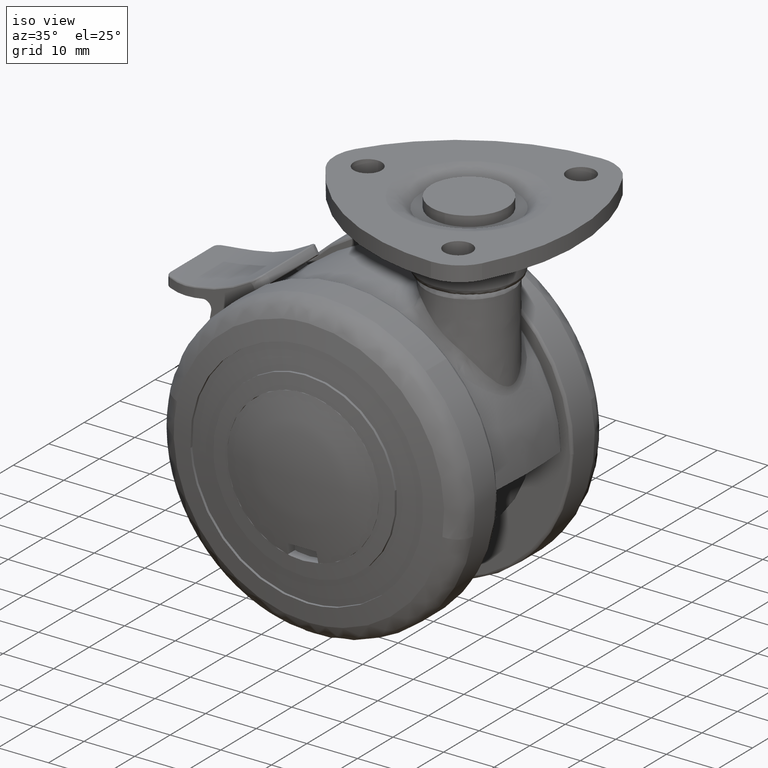
[diagram: clean part render]
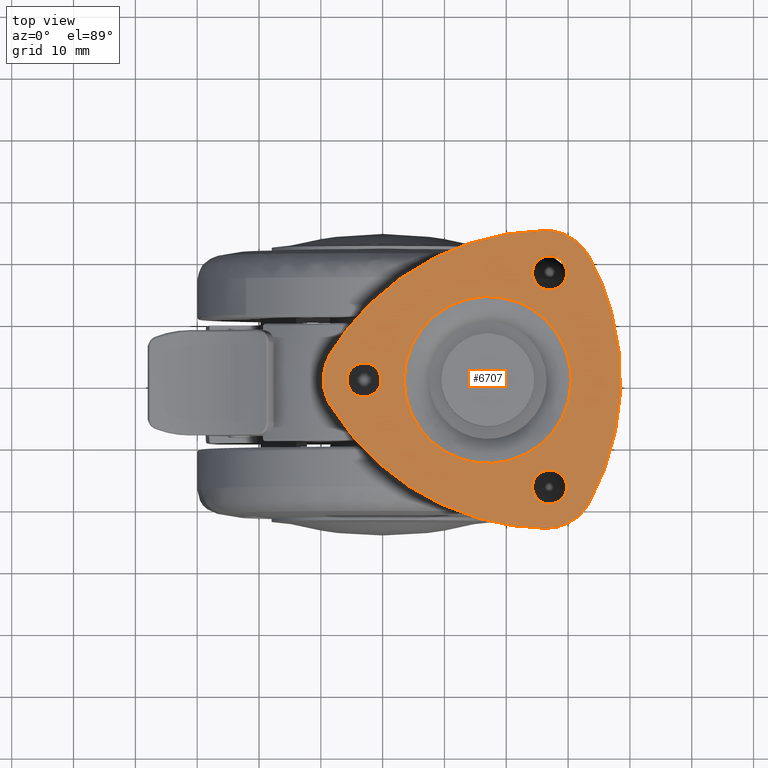
[diagram: tour spotlight — one face highlighted and labeled with its STEP entity id]
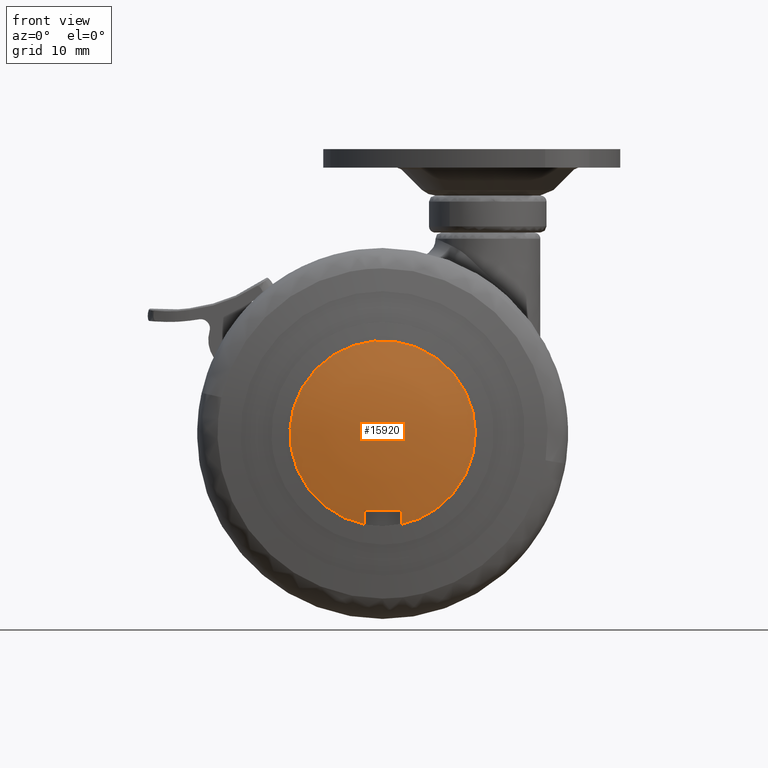
[diagram: tour spotlight — one face highlighted and labeled with its STEP entity id]
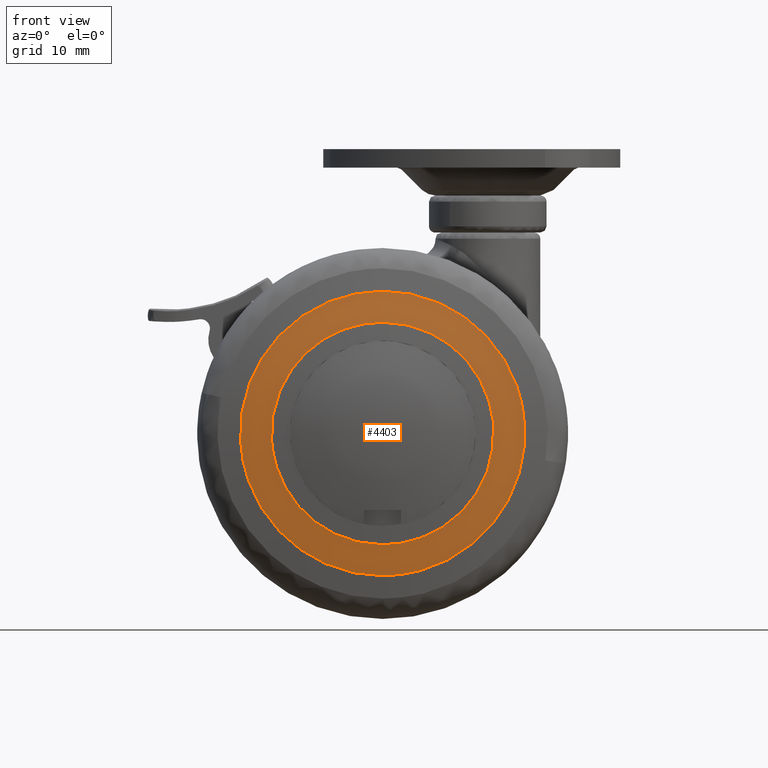
[diagram: tour spotlight — one face highlighted and labeled with its STEP entity id]
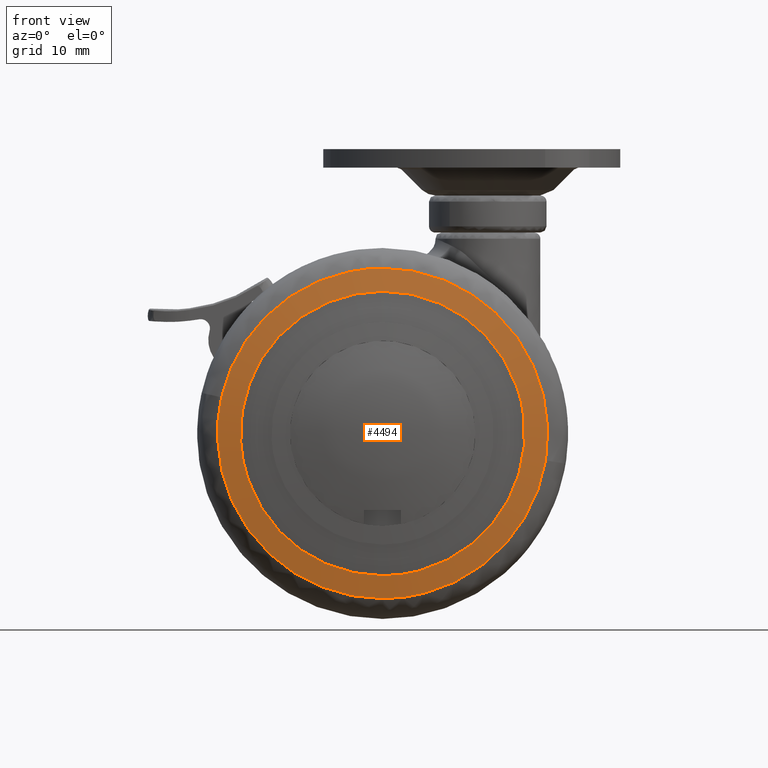
[diagram: tour spotlight — one face highlighted and labeled with its STEP entity id]
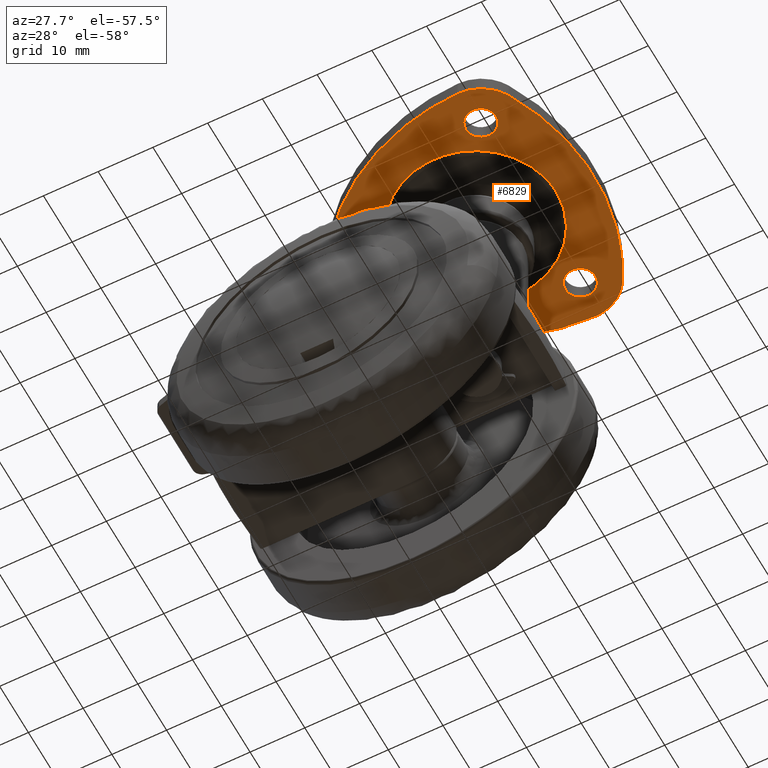
[diagram: tour spotlight — one face highlighted and labeled with its STEP entity id]
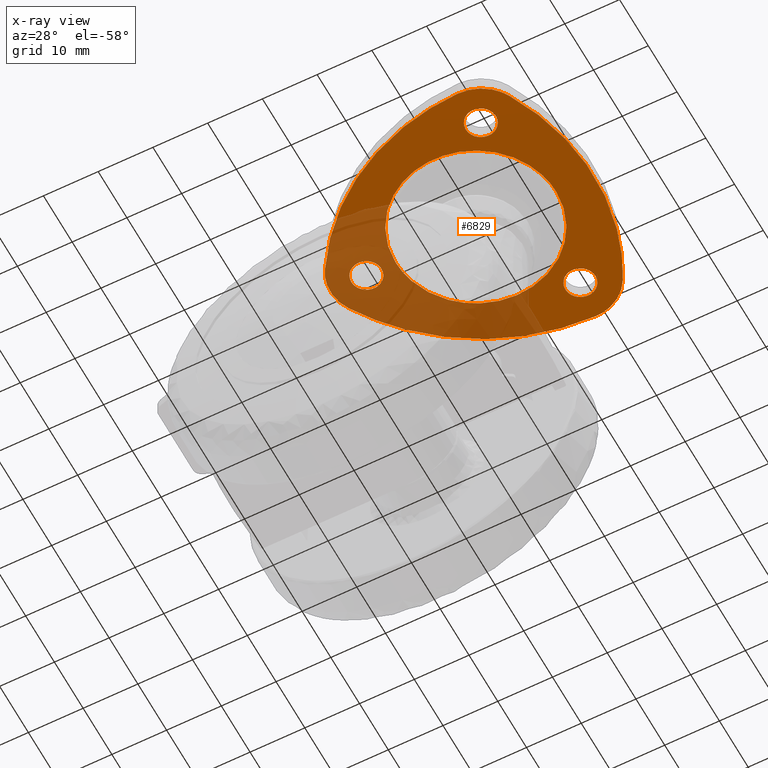
[diagram: x-ray of the same camera — body ghosted, this tour face saturated]
A machine part: a face-by-face anatomy tour. The part has 231 B-rep faces; the first image is the clean iso view, then the 5 largest visible faces are spotlighted one at a time (largest first), each with its STEP entity span.

Face 1 — top view, entity #6707. In plain terms, the highlighted face is a freeform B-spline surface patch.
Definition (entity closure, byte-faithful):
#5035=CARTESIAN_POINT('',(26.675405854604701,14.589731802510521,46.0));
#5036=VERTEX_POINT('',#5035);
#5037=CARTESIAN_POINT('',(29.750000000000000,17.320508000000000,46.0));
#5038=VERTEX_POINT('',#5037);
#5039=CARTESIAN_POINT('',(26.675405854604701,14.589731802510522,46.0));
#5040=CARTESIAN_POINT('',(26.837133670867097,14.570507999999998,46.000000000000007));
#5041=CARTESIAN_POINT('',(27.0,14.570508000000000,46.0));
#5042=CARTESIAN_POINT('',(29.750000000000004,14.570507999999998,46.000000000000007));
#5043=CARTESIAN_POINT('',(29.750000000000000,17.320508000000000,46.0));
#5051=(BOUNDED_CURVE()B_SPLINE_CURVE(2,(#5039,#5040,#5041,#5042,#5043),.UNSPECIFIED.,.F.,.U.)B_SPLINE_CURVE_WITH_KNOTS((3,2,3),(0.229562473504602,0.250000000000000,0.500000000000000),.UNSPECIFIED.)CURVE()GEOMETRIC_REPRESENTATION_ITEM()RATIONAL_B_SPLINE_CURVE((0.956026754166243,0.976055948320711,1.0,0.707106781186548,1.0))REPRESENTATION_ITEM(''));
#5052=EDGE_CURVE('',#5036,#5038,#5051,.T.);
#5054=CARTESIAN_POINT('',(27.167879704802289,20.065378926783470,45.999999999999893));
#5055=VERTEX_POINT('',#5054);
#5056=CARTESIAN_POINT('',(29.750000000000000,17.320508000000000,46.0));
#5057=CARTESIAN_POINT('',(29.750000000000004,19.907453252142517,46.0));
#5058=CARTESIAN_POINT('',(27.167879704802285,20.065378926783474,45.999999999999886));
#5066=(BOUNDED_CURVE()B_SPLINE_CURVE(2,(#5056,#5057,#5058),.UNSPECIFIED.,.F.,.U.)B_SPLINE_CURVE_WITH_KNOTS((3,3),(0.500000000000000,0.739333199790638),.UNSPECIFIED.)CURVE()GEOMETRIC_REPRESENTATION_ITEM()RATIONAL_B_SPLINE_CURVE((1.0,0.719603714977587,0.976072550785749))REPRESENTATION_ITEM(''));
#5067=EDGE_CURVE('',#5038,#5055,#5066,.T.);
#5134=CARTESIAN_POINT('',(24.250000000000000,17.320508000000000,46.0));
#5135=VERTEX_POINT('',#5134);
#5136=CARTESIAN_POINT('',(24.250000000000000,17.320508000000000,46.0));
#5137=CARTESIAN_POINT('',(24.250000000000004,14.878028053794450,45.999999999999993));
#5138=CARTESIAN_POINT('',(26.675405854604701,14.589731802510522,46.0));
#5146=(BOUNDED_CURVE()B_SPLINE_CURVE(2,(#5136,#5137,#5138),.UNSPECIFIED.,.F.,.U.)B_SPLINE_CURVE_WITH_KNOTS((3,3),(0.0,0.229562473504602),.UNSPECIFIED.)CURVE()GEOMETRIC_REPRESENTATION_ITEM()RATIONAL_B_SPLINE_CURVE((1.0,0.731050832865837,0.956026754166243))REPRESENTATION_ITEM(''));
#5147=EDGE_CURVE('',#5135,#5036,#5146,.T.);
#5181=CARTESIAN_POINT('',(27.167879704802285,20.065378926783474,45.999999999999886));
#5182=CARTESIAN_POINT('',(27.084018204314173,20.070507999999993,46.000000000000007));
#5183=CARTESIAN_POINT('',(27.0,20.070508000000000,46.0));
#5184=CARTESIAN_POINT('',(24.250000000000004,20.070507999999997,46.000000000000007));
#5185=CARTESIAN_POINT('',(24.250000000000000,17.320508000000000,46.0));
#5193=(BOUNDED_CURVE()B_SPLINE_CURVE(2,(#5181,#5182,#5183,#5184,#5185),.UNSPECIFIED.,.F.,.U.)B_SPLINE_CURVE_WITH_KNOTS((3,2,3),(0.739333199790638,0.750000000000000,1.0),.UNSPECIFIED.)CURVE()GEOMETRIC_REPRESENTATION_ITEM()RATIONAL_B_SPLINE_CURVE((0.976072550785749,0.987503066208960,1.0,0.707106781186548,1.0))REPRESENTATION_ITEM(''));
#5194=EDGE_CURVE('',#5055,#5135,#5193,.T.);
#5221=CARTESIAN_POINT('',(-3.324594145395296,-2.730776197489479,46.0));
#5222=VERTEX_POINT('',#5221);
#5223=CARTESIAN_POINT('',(-0.250000000000000,0.0,46.0));
#5224=VERTEX_POINT('',#5223);
#5225=CARTESIAN_POINT('',(-3.324594145395295,-2.730776197489479,46.0));
#5226=CARTESIAN_POINT('',(-3.162866329132905,-2.750000000000000,46.0));
#5227=CARTESIAN_POINT('',(-3.0,-2.750000000000000,46.0));
#5228=CARTESIAN_POINT('',(-0.250000000000000,-2.750000000000000,46.000000000000007));
#5229=CARTESIAN_POINT('',(-0.250000000000000,0.0,46.0));
#5237=(BOUNDED_CURVE()B_SPLINE_CURVE(2,(#5225,#5226,#5227,#5228,#5229),.UNSPECIFIED.,.F.,.U.)B_SPLINE_CURVE_WITH_KNOTS((3,2,3),(0.229562473504602,0.250000000000000,0.500000000000000),.UNSPECIFIED.)CURVE()GEOMETRIC_REPRESENTATION_ITEM()RATIONAL_B_SPLINE_CURVE((0.956026754166243,0.976055948320711,1.0,0.707106781186548,1.0))REPRESENTATION_ITEM(''));
#5238=EDGE_CURVE('',#5222,#5224,#5237,.T.);
#5240=CARTESIAN_POINT('',(-2.832120295197709,2.744870926783473,45.999999999999893));
#5241=VERTEX_POINT('',#5240);
#5242=CARTESIAN_POINT('',(-0.250000000000000,0.0,46.0));
#5243=CARTESIAN_POINT('',(-0.250000000000000,2.586945252142516,46.0));
#5244=CARTESIAN_POINT('',(-2.832120295197710,2.744870926783472,45.999999999999886));
#5252=(BOUNDED_CURVE()B_SPLINE_CURVE(2,(#5242,#5243,#5244),.UNSPECIFIED.,.F.,.U.)B_SPLINE_CURVE_WITH_KNOTS((3,3),(0.500000000000000,0.739333199790638),.UNSPECIFIED.)CURVE()GEOMETRIC_REPRESENTATION_ITEM()RATIONAL_B_SPLINE_CURVE((1.0,0.719603714977587,0.976072550785749))REPRESENTATION_ITEM(''));
#5253=EDGE_CURVE('',#5224,#5241,#5252,.T.);
#5320=CARTESIAN_POINT('',(-5.750000000000000,0.0,46.0));
#5321=VERTEX_POINT('',#5320);
#5322=CARTESIAN_POINT('',(-5.750000000000000,0.0,46.0));
#5323=CARTESIAN_POINT('',(-5.749999999999998,-2.442479946205554,46.0));
#5324=CARTESIAN_POINT('',(-3.324594145395296,-2.730776197489479,46.000000000000007));
#5332=(BOUNDED_CURVE()B_SPLINE_CURVE(2,(#5322,#5323,#5324),.UNSPECIFIED.,.F.,.U.)B_SPLINE_CURVE_WITH_KNOTS((3,3),(0.0,0.229562473504602),.UNSPECIFIED.)CURVE()GEOMETRIC_REPRESENTATION_ITEM()RATIONAL_B_SPLINE_CURVE((1.0,0.731050832865837,0.956026754166243))REPRESENTATION_ITEM(''));
#5333=EDGE_CURVE('',#5321,#5222,#5332,.T.);
#5367=CARTESIAN_POINT('',(-2.832120295197710,2.744870926783472,45.999999999999886));
#5368=CARTESIAN_POINT('',(-2.915981795685824,2.750000000000000,46.000000000000007));
#5369=CARTESIAN_POINT('',(-3.0,2.750000000000000,46.0));
#5370=CARTESIAN_POINT('',(-5.750000000000000,2.750000000000000,46.000000000000007));
#5371=CARTESIAN_POINT('',(-5.750000000000000,0.0,46.0));
#5379=(BOUNDED_CURVE()B_SPLINE_CURVE(2,(#5367,#5368,#5369,#5370,#5371),.UNSPECIFIED.,.F.,.U.)B_SPLINE_CURVE_WITH_KNOTS((3,2,3),(0.739333199790638,0.750000000000000,1.0),.UNSPECIFIED.)CURVE()GEOMETRIC_REPRESENTATION_ITEM()RATIONAL_B_SPLINE_CURVE((0.976072550785749,0.987503066208960,1.0,0.707106781186548,1.0))REPRESENTATION_ITEM(''));
#5380=EDGE_CURVE('',#5241,#5321,#5379,.T.);
#5407=CARTESIAN_POINT('',(26.675405854604701,-20.051284197489430,46.0));
#5408=VERTEX_POINT('',#5407);
#5409=CARTESIAN_POINT('',(29.750000000000000,-17.320507999999950,46.0));
#5410=VERTEX_POINT('',#5409);
#5411=CARTESIAN_POINT('',(26.675405854604701,-20.051284197489434,46.0));
#5412=CARTESIAN_POINT('',(26.837133670867090,-20.070507999999950,46.000000000000007));
#5413=CARTESIAN_POINT('',(27.0,-20.070507999999950,46.0));
#5414=CARTESIAN_POINT('',(29.750000000000004,-20.070507999999954,46.000000000000007));
#5415=CARTESIAN_POINT('',(29.750000000000000,-17.320507999999950,46.0));
#5423=(BOUNDED_CURVE()B_SPLINE_CURVE(2,(#5411,#5412,#5413,#5414,#5415),.UNSPECIFIED.,.F.,.U.)B_SPLINE_CURVE_WITH_KNOTS((3,2,3),(0.229562473504602,0.250000000000000,0.500000000000000),.UNSPECIFIED.)CURVE()GEOMETRIC_REPRESENTATION_ITEM()RATIONAL_B_SPLINE_CURVE((0.956026754166242,0.976055948320711,1.0,0.707106781186548,1.0))REPRESENTATION_ITEM(''));
#5424=EDGE_CURVE('',#5408,#5410,#5423,.T.);
#5426=CARTESIAN_POINT('',(27.167879704802289,-14.575637073216480,45.999999999999893));
#5427=VERTEX_POINT('',#5426);
#5428=CARTESIAN_POINT('',(29.750000000000000,-17.320507999999950,46.0));
#5429=CARTESIAN_POINT('',(29.750000000000004,-14.733562747857439,46.000000000000007));
#5430=CARTESIAN_POINT('',(27.167879704802296,-14.575637073216475,45.999999999999886));
#5438=(BOUNDED_CURVE()B_SPLINE_CURVE(2,(#5428,#5429,#5430),.UNSPECIFIED.,.F.,.U.)B_SPLINE_CURVE_WITH_KNOTS((3,3),(0.500000000000000,0.739333199790638),.UNSPECIFIED.)CURVE()GEOMETRIC_REPRESENTATION_ITEM()RATIONAL_B_SPLINE_CURVE((1.0,0.719603714977588,0.976072550785749))REPRESENTATION_ITEM(''));
#5439=EDGE_CURVE('',#5410,#5427,#5438,.T.);
#5506=CARTESIAN_POINT('',(24.250000000000000,-17.320507999999950,46.0));
#5507=VERTEX_POINT('',#5506);
#5508=CARTESIAN_POINT('',(24.250000000000000,-17.320507999999950,46.0));
#5509=CARTESIAN_POINT('',(24.250000000000004,-19.762987946205506,46.0));
#5510=CARTESIAN_POINT('',(26.675405854604701,-20.051284197489430,46.0));
#5518=(BOUNDED_CURVE()B_SPLINE_CURVE(2,(#5508,#5509,#5510),.UNSPECIFIED.,.F.,.U.)B_SPLINE_CURVE_WITH_KNOTS((3,3),(0.0,0.229562473504602),.UNSPECIFIED.)CURVE()GEOMETRIC_REPRESENTATION_ITEM()RATIONAL_B_SPLINE_CURVE((1.0,0.731050832865837,0.956026754166243))REPRESENTATION_ITEM(''));
#5519=EDGE_CURVE('',#5507,#5408,#5518,.T.);
#5553=CARTESIAN_POINT('',(27.167879704802296,-14.575637073216475,45.999999999999886));
#5554=CARTESIAN_POINT('',(27.084018204314173,-14.570507999999950,46.0));
#5555=CARTESIAN_POINT('',(27.0,-14.570507999999950,46.0));
#5556=CARTESIAN_POINT('',(24.250000000000004,-14.570507999999956,46.000000000000007));
#5557=CARTESIAN_POINT('',(24.250000000000000,-17.320507999999950,46.0));
#5565=(BOUNDED_CURVE()B_SPLINE_CURVE(2,(#5553,#5554,#5555,#5556,#5557),.UNSPECIFIED.,.F.,.U.)B_SPLINE_CURVE_WITH_KNOTS((3,2,3),(0.739333199790638,0.750000000000000,1.0),.UNSPECIFIED.)CURVE()GEOMETRIC_REPRESENTATION_ITEM()RATIONAL_B_SPLINE_CURVE((0.976072550785749,0.987503066208960,1.0,0.707106781186548,1.0))REPRESENTATION_ITEM(''));
#5566=EDGE_CURVE('',#5427,#5507,#5565,.T.);
#5835=CARTESIAN_POINT('',(6.178842343501279,8.071718075673964,45.999999999997982));
#5836=VERTEX_POINT('',#5835);
#5850=CARTESIAN_POINT('',(3.500000000000001,0.0,46.0));
#5851=VERTEX_POINT('',#5850);
#5852=CARTESIAN_POINT('',(3.500000000000001,0.0,46.0));
#5853=CARTESIAN_POINT('',(3.499998727587240,4.480387176460948,45.999999999998998));
#5854=CARTESIAN_POINT('',(6.178842343501279,8.071718075673964,45.999999999997989));
#5862=(BOUNDED_CURVE()B_SPLINE_CURVE(2,(#5852,#5853,#5854),.UNSPECIFIED.,.F.,.U.)B_SPLINE_CURVE_WITH_KNOTS((3,3),(0.0,0.103156589162906),.UNSPECIFIED.)CURVE()GEOMETRIC_REPRESENTATION_ITEM()RATIONAL_B_SPLINE_CURVE((1.0,0.879144538233038,0.858025374206778))REPRESENTATION_ITEM(''));
#5863=EDGE_CURVE('',#5851,#5836,#5862,.T.);
#5865=CARTESIAN_POINT('',(30.500000000000000,0.0,46.0));
#5866=VERTEX_POINT('',#5865);
#5867=CARTESIAN_POINT('',(30.500000000000000,0.0,46.0));
#5868=CARTESIAN_POINT('',(30.499999999999996,-13.500000000000000,46.000000000000007));
#5869=CARTESIAN_POINT('',(17.0,-13.500000000000000,46.0));
#5870=CARTESIAN_POINT('',(3.500000000000000,-13.500000000000000,46.000000000000007));
#5871=CARTESIAN_POINT('',(3.500000000000001,0.0,46.0));
#5879=(BOUNDED_CURVE()B_SPLINE_CURVE(2,(#5867,#5868,#5869,#5870,#5871),.UNSPECIFIED.,.F.,.U.)B_SPLINE_CURVE_WITH_KNOTS((3,2,3),(0.500000000000000,0.750000000000000,1.0),.UNSPECIFIED.)CURVE()GEOMETRIC_REPRESENTATION_ITEM()RATIONAL_B_SPLINE_CURVE((1.0,0.707106781186548,1.0,0.707106781186548,1.0))REPRESENTATION_ITEM(''));
#5880=EDGE_CURVE('',#5866,#5851,#5879,.T.);
#5882=CARTESIAN_POINT('',(26.267186951724351,9.816783892984592,46.0));
#5883=VERTEX_POINT('',#5882);
#5884=CARTESIAN_POINT('',(26.267186951724355,9.816783892984592,46.0));
#5885=CARTESIAN_POINT('',(30.500000000000000,5.820946735156888,45.999999999999993));
#5886=CARTESIAN_POINT('',(30.500000000000000,0.0,46.0));
#5894=(BOUNDED_CURVE()B_SPLINE_CURVE(2,(#5884,#5885,#5886),.UNSPECIFIED.,.F.,.U.)B_SPLINE_CURVE_WITH_KNOTS((3,3),(0.370655485560227,0.500000000000000),.UNSPECIFIED.)CURVE()GEOMETRIC_REPRESENTATION_ITEM()RATIONAL_B_SPLINE_CURVE((0.853730296276507,0.848463475319487,1.0))REPRESENTATION_ITEM(''));
#5895=EDGE_CURVE('',#5883,#5866,#5894,.T.);
#5952=CARTESIAN_POINT('',(6.178842343501279,8.071718075673964,45.999999999997989));
#5953=CARTESIAN_POINT('',(10.227908459341528,13.500001474261044,45.999999999998437));
#5954=CARTESIAN_POINT('',(16.999998875036219,13.500000839127120,45.999999999999112));
#5955=CARTESIAN_POINT('',(22.365534711905788,13.500000335909714,45.999999999999645));
#5956=CARTESIAN_POINT('',(26.267186951724355,9.816783892984592,46.0));
#5964=(BOUNDED_CURVE()B_SPLINE_CURVE(2,(#5952,#5953,#5954,#5955,#5956),.UNSPECIFIED.,.F.,.U.)B_SPLINE_CURVE_WITH_KNOTS((3,2,3),(0.103156589162906,0.250000000000000,0.370655485560226),.UNSPECIFIED.)CURVE()GEOMETRIC_REPRESENTATION_ITEM()RATIONAL_B_SPLINE_CURVE((0.858025374206778,0.827962242953510,1.0,0.858643305867061,0.853730296276507))REPRESENTATION_ITEM(''));
#5965=EDGE_CURVE('',#5836,#5883,#5964,.T.);
#6586=CARTESIAN_POINT('',(-12.021836093665041,26.578639665215800,46.0));
#6587=CARTESIAN_POINT('',(40.903350968403942,26.578639665215800,46.0));
#6588=CARTESIAN_POINT('',(-12.021836093665041,-26.418740999094361,46.0));
#6589=CARTESIAN_POINT('',(40.903350968403942,-26.418740999094361,46.0));
#6590=B_SPLINE_SURFACE_WITH_KNOTS('',1,1,((#6586,#6588),(#6587,#6589)),.UNSPECIFIED.,.F.,.F.,.U.,(2,2),(2,2),(0.0,52.925187062068993),(0.0,52.997380664310157),.UNSPECIFIED.);
#6591=CARTESIAN_POINT('',(33.343409417921499,20.035133937194850,46.0));
#6592=VERTEX_POINT('',#6591);
#6593=CARTESIAN_POINT('',(26.179230248840049,24.171374784655399,46.0));
#6594=VERTEX_POINT('',#6593);
#6595=CARTESIAN_POINT('',(33.343409417921499,20.035133937194850,46.0));
#6596=CARTESIAN_POINT('',(31.010526849697772,24.266944342774963,46.000000000000007));
#6597=CARTESIAN_POINT('',(26.179230248840049,24.171374784655399,46.0));
#6605=(BOUNDED_CURVE()B_SPLINE_CURVE(2,(#6595,#6596,#6597),.UNSPECIFIED.,.F.,.U.)CURVE()GEOMETRIC_REPRESENTATION_ITEM()QUASI_UNIFORM_CURVE()RATIONAL_B_SPLINE_CURVE((1.0,0.855967231694400,1.0))REPRESENTATION_ITEM(''));
#6606=EDGE_CURVE('',#6592,#6594,#6605,.T.);
#6607=ORIENTED_EDGE('',*,*,#6606,.T.);
#6608=CARTESIAN_POINT('',(-8.452562361699592,4.251831279498720,46.0));
#6609=VERTEX_POINT('',#6608);
#6610=CARTESIAN_POINT('',(26.179230248840060,24.171374784655431,46.0));
#6611=CARTESIAN_POINT('',(3.393913430736199,23.720648098861083,45.999999999999993));
#6612=CARTESIAN_POINT('',(-8.452562361699600,4.251831279498724,46.0));
#6620=(BOUNDED_CURVE()B_SPLINE_CURVE(2,(#6610,#6611,#6612),.UNSPECIFIED.,.F.,.U.)CURVE()GEOMETRIC_REPRESENTATION_ITEM()QUASI_UNIFORM_CURVE()RATIONAL_B_SPLINE_CURVE((1.0,0.876529890547983,1.0))REPRESENTATION_ITEM(''));
#6621=EDGE_CURVE('',#6594,#6609,#6620,.T.);
#6622=ORIENTED_EDGE('',*,*,#6621,.T.);
#6623=CARTESIAN_POINT('',(-8.456269656763912,-4.059117309858815,46.0));
#6624=VERTEX_POINT('',#6623);
#6625=CARTESIAN_POINT('',(-8.452562361699592,4.251831279498720,46.0));
#6626=CARTESIAN_POINT('',(-10.980419690782297,0.097483768469291,46.000000000000007));
#6627=CARTESIAN_POINT('',(-8.456269656763910,-4.059117309858816,46.0));
#6635=(BOUNDED_CURVE()B_SPLINE_CURVE(2,(#6625,#6626,#6627),.UNSPECIFIED.,.F.,.U.)CURVE()GEOMETRIC_REPRESENTATION_ITEM()QUASI_UNIFORM_CURVE()RATIONAL_B_SPLINE_CURVE((1.0,0.854510358958440,1.0))REPRESENTATION_ITEM(''));
#6636=EDGE_CURVE('',#6609,#6624,#6635,.T.);
#6637=ORIENTED_EDGE('',*,*,#6636,.T.);
#6638=CARTESIAN_POINT('',(26.283909536443950,-24.011961621791450,46.0));
#6639=VERTEX_POINT('',#6638);
#6640=CARTESIAN_POINT('',(-8.456269656763912,-4.059117309858815,46.0));
#6641=CARTESIAN_POINT('',(3.415497261458442,-23.608746780173856,46.0));
#6642=CARTESIAN_POINT('',(26.283909536443961,-24.011961621791450,46.0));
#6650=(BOUNDED_CURVE()B_SPLINE_CURVE(2,(#6640,#6641,#6642),.UNSPECIFIED.,.F.,.U.)CURVE()GEOMETRIC_REPRESENTATION_ITEM()QUASI_UNIFORM_CURVE()RATIONAL_B_SPLINE_CURVE((1.0,0.875797044298574,1.0))REPRESENTATION_ITEM(''));
#6651=EDGE_CURVE('',#6624,#6639,#6650,.T.);
#6652=ORIENTED_EDGE('',*,*,#6651,.T.);
#6653=CARTESIAN_POINT('',(33.451795127002498,-19.837253794829952,46.0));
#6654=VERTEX_POINT('',#6653);
#6655=CARTESIAN_POINT('',(26.283909536443950,-24.011961621791450,46.0));
#6656=CARTESIAN_POINT('',(31.133365363733979,-24.097466984409117,46.0));
#6657=CARTESIAN_POINT('',(33.451795127002477,-19.837253794829941,46.0));
#6665=(BOUNDED_CURVE()B_SPLINE_CURVE(2,(#6655,#6656,#6657),.UNSPECIFIED.,.F.,.U.)CURVE()GEOMETRIC_REPRESENTATION_ITEM()QUASI_UNIFORM_CURVE()RATIONAL_B_SPLINE_CURVE((1.0,0.855116105075378,1.0))REPRESENTATION_ITEM(''));
#6666=EDGE_CURVE('',#6639,#6654,#6665,.T.);
#6667=ORIENTED_EDGE('',*,*,#6666,.T.);
#6668=CARTESIAN_POINT('',(33.451795127002498,-19.837253794829952,46.0));
#6669=CARTESIAN_POINT('',(44.317327735830084,0.128623324547439,46.0));
#6670=CARTESIAN_POINT('',(33.343409417921492,20.035133937194821,46.0));
#6678=(BOUNDED_CURVE()B_SPLINE_CURVE(2,(#6668,#6669,#6670),.UNSPECIFIED.,.F.,.U.)CURVE()GEOMETRIC_REPRESENTATION_ITEM()QUASI_UNIFORM_CURVE()RATIONAL_B_SPLINE_CURVE((1.0,0.877053896747274,1.0))REPRESENTATION_ITEM(''));
#6679=EDGE_CURVE('',#6654,#6592,#6678,.T.);
#6680=ORIENTED_EDGE('',*,*,#6679,.T.);
#6681=EDGE_LOOP('',(#6607,#6622,#6637,#6652,#6667,#6680));
#6682=FACE_OUTER_BOUND('',#6681,.T.);
#6683=ORIENTED_EDGE('',*,*,#5880,.T.);
#6684=ORIENTED_EDGE('',*,*,#5863,.T.);
#6685=ORIENTED_EDGE('',*,*,#5965,.T.);
#6686=ORIENTED_EDGE('',*,*,#5895,.T.);
#6687=EDGE_LOOP('',(#6683,#6684,#6685,#6686));
#6688=FACE_BOUND('',#6687,.T.);
#6689=ORIENTED_EDGE('',*,*,#5439,.F.);
#6690=ORIENTED_EDGE('',*,*,#5424,.F.);
#6691=ORIENTED_EDGE('',*,*,#5519,.F.);
#6692=ORIENTED_EDGE('',*,*,#5566,.F.);
#6693=EDGE_LOOP('',(#6689,#6690,#6691,#6692));
#6694=FACE_BOUND('',#6693,.T.);
#6695=ORIENTED_EDGE('',*,*,#5253,.F.);
#6696=ORIENTED_EDGE('',*,*,#5238,.F.);
#6697=ORIENTED_EDGE('',*,*,#5333,.F.);
#6698=ORIENTED_EDGE('',*,*,#5380,.F.);
#6699=EDGE_LOOP('',(#6695,#6696,#6697,#6698));
#6700=FACE_BOUND('',#6699,.T.);
#6701=ORIENTED_EDGE('',*,*,#5067,.F.);
#6702=ORIENTED_EDGE('',*,*,#5052,.F.);
#6703=ORIENTED_EDGE('',*,*,#5147,.F.);
#6704=ORIENTED_EDGE('',*,*,#5194,.F.);
#6705=EDGE_LOOP('',(#6701,#6702,#6703,#6704));
#6706=FACE_BOUND('',#6705,.T.);
#6707=ADVANCED_FACE('',(#6682,#6688,#6694,#6700,#6706),#6590,.F.);

Face 2 — front view, entity #15920. In plain terms, the highlighted face is a freeform B-spline surface patch.
Definition (entity closure, byte-faithful):
#13801=CARTESIAN_POINT('',(3.0,-23.033229668414350,-12.400000000000000));
#13802=VERTEX_POINT('',#13801);
#13803=CARTESIAN_POINT('',(-3.0,-23.033229668414350,-12.400000000000000));
#13804=VERTEX_POINT('',#13803);
#13805=CARTESIAN_POINT('',(3.000000000000015,-23.033229668414350,-12.400000000000000));
#13806=CARTESIAN_POINT('',(2.168404E-014,-23.186739989781426,-12.399999999999997));
#13807=CARTESIAN_POINT('',(-2.999999999999993,-23.033229668414350,-12.400000000000000));
#13815=(BOUNDED_CURVE()B_SPLINE_CURVE(2,(#13805,#13806,#13807),.UNSPECIFIED.,.F.,.U.)CURVE()GEOMETRIC_REPRESENTATION_ITEM()QUASI_UNIFORM_CURVE()RATIONAL_B_SPLINE_CURVE((1.0,0.998693375438973,1.0))REPRESENTATION_ITEM(''));
#13816=EDGE_CURVE('',#13802,#13804,#13815,.T.);
#13845=CARTESIAN_POINT('',(3.0,-22.500000193105048,-14.696938456699060));
#13846=VERTEX_POINT('',#13845);
#13847=CARTESIAN_POINT('',(3.0,-22.500000193105048,-14.696938456699060));
#13848=CARTESIAN_POINT('',(2.999999999999999,-22.789215183001911,-13.553715829802712));
#13849=CARTESIAN_POINT('',(3.0,-23.033229668414268,-12.399999999999990));
#13857=(BOUNDED_CURVE()B_SPLINE_CURVE(2,(#13847,#13848,#13849),.UNSPECIFIED.,.F.,.U.)CURVE()GEOMETRIC_REPRESENTATION_ITEM()QUASI_UNIFORM_CURVE()RATIONAL_B_SPLINE_CURVE((1.0,0.999806432813241,1.0))REPRESENTATION_ITEM(''));
#13858=EDGE_CURVE('',#13846,#13802,#13857,.T.);
#13881=CARTESIAN_POINT('',(-3.0,-22.500000193105048,-14.696938456699060));
#13882=VERTEX_POINT('',#13881);
#13883=CARTESIAN_POINT('',(-3.0,-23.033229668414268,-12.399999999999970));
#13884=CARTESIAN_POINT('',(-3.0,-22.789215183001925,-13.553715829802664));
#13885=CARTESIAN_POINT('',(-3.0,-22.500000193105048,-14.696938456699060));
#13893=(BOUNDED_CURVE()B_SPLINE_CURVE(2,(#13883,#13884,#13885),.UNSPECIFIED.,.F.,.U.)CURVE()GEOMETRIC_REPRESENTATION_ITEM()QUASI_UNIFORM_CURVE()RATIONAL_B_SPLINE_CURVE((1.0,0.999806432813240,1.0))REPRESENTATION_ITEM(''));
#13894=EDGE_CURVE('',#13804,#13882,#13893,.T.);
#15866=CARTESIAN_POINT('',(-3.0,-22.500000193105048,-14.696938456699060));
#15867=CARTESIAN_POINT('',(-16.287048005877153,-22.500000193111298,-11.984731139843753));
#15868=CARTESIAN_POINT('',(-14.924042295076861,-22.500000193111301,1.507634430078121));
#15869=CARTESIAN_POINT('',(-13.561036584276568,-22.500000193111298,14.999999999999998));
#15870=CARTESIAN_POINT('',(0.0,-22.500000193111301,15.0));
#15871=CARTESIAN_POINT('',(13.561036584276568,-22.500000193111298,14.999999999999998));
#15872=CARTESIAN_POINT('',(14.924042295076861,-22.500000193111301,1.507634430078128));
#15873=CARTESIAN_POINT('',(16.287048005877153,-22.500000193111298,-11.984731139843747));
#15874=CARTESIAN_POINT('',(3.0,-22.500000193105048,-14.696938456699060));
#15882=(BOUNDED_CURVE()B_SPLINE_CURVE(2,(#15866,#15867,#15868,#15869,#15870,#15871,#15872,#15873,#15874),.UNSPECIFIED.,.F.,.U.)B_SPLINE_CURVE_WITH_KNOTS((3,2,2,2,3),(0.0,0.250000000000000,0.500000000000000,0.750000000000000,1.0),.UNSPECIFIED.)CURVE()GEOMETRIC_REPRESENTATION_ITEM()RATIONAL_B_SPLINE_CURVE((1.0,0.741791399924941,1.0,0.741791399924941,1.0,0.741791399924941,1.0,0.741791399924941,1.0))REPRESENTATION_ITEM(''));
#15883=EDGE_CURVE('',#13882,#13846,#15882,.T.);
#15890=CARTESIAN_POINT('',(-16.098346467538715,-19.987903132292345,-15.855974009386893));
#15891=CARTESIAN_POINT('',(-8.202931159676842,-22.195516713013962,-16.133352820747060));
#15892=CARTESIAN_POINT('',(8.202930561120420,-22.195516713013962,-16.133352820747049));
#15893=CARTESIAN_POINT('',(16.098345336901620,-19.987903448426390,-15.855974049108001));
#15894=CARTESIAN_POINT('',(-16.445717487160895,-22.287371305518388,-7.442574693214092));
#15895=CARTESIAN_POINT('',(-8.383390024889796,-24.588442385695281,-7.561804526654255));
#15896=CARTESIAN_POINT('',(8.383389413165542,-24.588442385695281,-7.561804526654255));
#15897=CARTESIAN_POINT('',(16.445716333097600,-22.287371634899916,-7.442574710280973));
#15898=CARTESIAN_POINT('',(-16.445717487160895,-21.925092315760146,8.832047118799208));
#15899=CARTESIAN_POINT('',(-8.383390024889796,-24.219090781384001,9.030539621808934));
#15900=CARTESIAN_POINT('',(8.383389413165542,-24.219090781384001,9.030539621808934));
#15901=CARTESIAN_POINT('',(16.445716333097600,-21.925092644129272,8.832047147211968));
#15902=CARTESIAN_POINT('',(-16.184465571661647,-19.893092356467758,16.098522441003045));
#15903=CARTESIAN_POINT('',(-8.247656069661629,-22.110921546133486,16.433364579712762));
#15904=CARTESIAN_POINT('',(8.247655467841693,-22.110921546133486,16.433364579712762));
#15905=CARTESIAN_POINT('',(16.184464435212977,-19.893092674032257,16.098522488948113));
#15913=(BOUNDED_SURFACE()B_SPLINE_SURFACE(2,2,((#15890,#15894,#15898,#15902),(#15891,#15895,#15899,#15903),(#15892,#15896,#15900,#15904),(#15893,#15897,#15901,#15905)),.UNSPECIFIED.,.F.,.F.,.U.)B_SPLINE_SURFACE_WITH_KNOTS((3,1,3),(3,1,3),(14.482770024585720,30.682292575586398,46.881813944530492),(13.485859606695181,30.682292575586398,45.555778767633441),.UNSPECIFIED.)GEOMETRIC_REPRESENTATION_ITEM()RATIONAL_B_SPLINE_SURFACE(((1.041521878261768,1.019522563419284,1.019522563419284,1.035979839775345),(1.021999314842484,1.0,1.0,1.016457276356061),(1.021999314842484,1.0,1.0,1.016457276356061),(1.041521875412700,1.019522560570215,1.019522560570215,1.035979836926277)))REPRESENTATION_ITEM('')SURFACE());
#15914=ORIENTED_EDGE('',*,*,#13894,.F.);
#15915=ORIENTED_EDGE('',*,*,#13816,.F.);
#15916=ORIENTED_EDGE('',*,*,#13858,.F.);
#15917=ORIENTED_EDGE('',*,*,#15883,.F.);
#15918=EDGE_LOOP('',(#15914,#15915,#15916,#15917));
#15919=FACE_OUTER_BOUND('',#15918,.T.);
#15920=ADVANCED_FACE('',(#15919),#15913,.T.);

Face 3 — front view, entity #4403. In plain terms, the highlighted face is a freeform B-spline surface patch.
Definition (entity closure, byte-faithful):
#2708=CARTESIAN_POINT('',(-17.966427463928429,-21.664317093810698,-1.098855851819412));
#2709=VERTEX_POINT('',#2708);
#2715=CARTESIAN_POINT('',(0.0,-21.664317093810698,-18.0));
#2716=VERTEX_POINT('',#2715);
#2717=CARTESIAN_POINT('',(0.0,-21.664317093810698,-18.0));
#2718=CARTESIAN_POINT('',(-16.932726067988781,-21.664317093810695,-17.999999999999996));
#2719=CARTESIAN_POINT('',(-17.966427463928436,-21.664317093810698,-1.098855851819412));
#2727=(BOUNDED_CURVE()B_SPLINE_CURVE(2,(#2717,#2718,#2719),.UNSPECIFIED.,.F.,.U.)B_SPLINE_CURVE_WITH_KNOTS((3,3),(0.500000000000000,0.739333133764834),.UNSPECIFIED.)CURVE()GEOMETRIC_REPRESENTATION_ITEM()RATIONAL_B_SPLINE_CURVE((1.0,0.719603792331629,0.976072409279629))REPRESENTATION_ITEM(''));
#2728=EDGE_CURVE('',#2716,#2709,#2727,.T.);
#2730=CARTESIAN_POINT('',(17.874172333807198,-21.664317093810698,2.124608994923150));
#2731=VERTEX_POINT('',#2730);
#2732=CARTESIAN_POINT('',(17.874172333807198,-21.664317093810698,2.124608994923150));
#2733=CARTESIAN_POINT('',(18.000000000000004,-21.664317093810695,1.066030501073853));
#2734=CARTESIAN_POINT('',(18.0,-21.664317093810698,0.0));
#2735=CARTESIAN_POINT('',(18.000000000000007,-21.664317093810698,-18.000000000000007));
#2736=CARTESIAN_POINT('',(0.0,-21.664317093810698,-18.0));
#2744=(BOUNDED_CURVE()B_SPLINE_CURVE(2,(#2732,#2733,#2734,#2735,#2736),.UNSPECIFIED.,.F.,.U.)B_SPLINE_CURVE_WITH_KNOTS((3,2,3),(0.229562541866078,0.250000000000000,0.500000000000000),.UNSPECIFIED.)CURVE()GEOMETRIC_REPRESENTATION_ITEM()RATIONAL_B_SPLINE_CURVE((0.956026888157576,0.976056028411161,1.0,0.707106781186547,1.0))REPRESENTATION_ITEM(''));
#2745=EDGE_CURVE('',#2731,#2716,#2744,.T.);
#2789=CARTESIAN_POINT('',(0.0,-21.664317093810698,18.0));
#2790=VERTEX_POINT('',#2789);
#2791=CARTESIAN_POINT('',(0.0,-21.664317093810698,18.0));
#2792=CARTESIAN_POINT('',(15.987147978364076,-21.664317093810702,18.0));
#2793=CARTESIAN_POINT('',(17.874172333807198,-21.664317093810698,2.124608994923150));
#2801=(BOUNDED_CURVE()B_SPLINE_CURVE(2,(#2791,#2792,#2793),.UNSPECIFIED.,.F.,.U.)B_SPLINE_CURVE_WITH_KNOTS((3,3),(0.0,0.229562541866078),.UNSPECIFIED.)CURVE()GEOMETRIC_REPRESENTATION_ITEM()RATIONAL_B_SPLINE_CURVE((1.0,0.731050752775386,0.956026888157576))REPRESENTATION_ITEM(''));
#2802=EDGE_CURVE('',#2790,#2731,#2801,.T.);
#2804=CARTESIAN_POINT('',(-17.966427463928436,-21.664317093810698,-1.098855851819412));
#2805=CARTESIAN_POINT('',(-17.999999999999996,-21.664317093810702,-0.549940784432691));
#2806=CARTESIAN_POINT('',(-18.0,-21.664317093810698,0.0));
#2807=CARTESIAN_POINT('',(-18.000000000000007,-21.664317093810698,18.000000000000007));
#2808=CARTESIAN_POINT('',(0.0,-21.664317093810698,18.0));
#2816=(BOUNDED_CURVE()B_SPLINE_CURVE(2,(#2804,#2805,#2806,#2807,#2808),.UNSPECIFIED.,.F.,.U.)B_SPLINE_CURVE_WITH_KNOTS((3,2,3),(0.739333133764834,0.750000000000000,1.0),.UNSPECIFIED.)CURVE()GEOMETRIC_REPRESENTATION_ITEM()RATIONAL_B_SPLINE_CURVE((0.976072409279629,0.987502988854919,1.0,0.707106781186547,1.0))REPRESENTATION_ITEM(''));
#2817=EDGE_CURVE('',#2709,#2790,#2816,.T.);
#2860=CARTESIAN_POINT('',(22.839220876403729,-20.972059654646049,2.714772505868377));
#2861=VERTEX_POINT('',#2860);
#2862=CARTESIAN_POINT('',(0.0,-20.972059654648898,-23.0));
#2863=VERTEX_POINT('',#2862);
#2864=CARTESIAN_POINT('',(22.839220876403726,-20.972059654646053,2.714772505868376));
#2865=CARTESIAN_POINT('',(22.999999999999996,-20.972059654648898,1.362147227661998));
#2866=CARTESIAN_POINT('',(23.0,-20.972059654648898,0.0));
#2867=CARTESIAN_POINT('',(22.999999999999993,-20.972059654648895,-22.999999999999993));
#2868=CARTESIAN_POINT('',(0.0,-20.972059654648898,-23.0));
#2876=(BOUNDED_CURVE()B_SPLINE_CURVE(2,(#2864,#2865,#2866,#2867,#2868),.UNSPECIFIED.,.F.,.U.)B_SPLINE_CURVE_WITH_KNOTS((3,2,3),(0.229562583706257,0.250000000000000,0.500000000000000),.UNSPECIFIED.)CURVE()GEOMETRIC_REPRESENTATION_ITEM()RATIONAL_B_SPLINE_CURVE((0.956026970166110,0.976056077429981,1.0,0.707106781186548,1.0))REPRESENTATION_ITEM(''));
#2877=EDGE_CURVE('',#2861,#2863,#2876,.T.);
#2879=CARTESIAN_POINT('',(-22.957101501621640,-20.972059654645491,-1.404097804248007));
#2880=VERTEX_POINT('',#2879);
#2881=CARTESIAN_POINT('',(0.0,-20.972059654648898,-23.0));
#2882=CARTESIAN_POINT('',(-21.636257106195920,-20.972059654648895,-22.999999999999993));
#2883=CARTESIAN_POINT('',(-22.957101501621633,-20.972059654645495,-1.404097804248006));
#2891=(BOUNDED_CURVE()B_SPLINE_CURVE(2,(#2881,#2882,#2883),.UNSPECIFIED.,.F.,.U.)B_SPLINE_CURVE_WITH_KNOTS((3,3),(0.500000000000000,0.739333102078558),.UNSPECIFIED.)CURVE()GEOMETRIC_REPRESENTATION_ITEM()RATIONAL_B_SPLINE_CURVE((1.0,0.719603829454410,0.976072341369816))REPRESENTATION_ITEM(''));
#2892=EDGE_CURVE('',#2863,#2880,#2891,.T.);
#2959=CARTESIAN_POINT('',(0.0,-20.972059654648898,23.0));
#2960=VERTEX_POINT('',#2959);
#2961=CARTESIAN_POINT('',(0.0,-20.972059654648898,23.0));
#2962=CARTESIAN_POINT('',(20.428027509771141,-20.972059654648898,23.0));
#2963=CARTESIAN_POINT('',(22.839220876403726,-20.972059654646053,2.714772505868376));
#2971=(BOUNDED_CURVE()B_SPLINE_CURVE(2,(#2961,#2962,#2963),.UNSPECIFIED.,.F.,.U.)B_SPLINE_CURVE_WITH_KNOTS((3,3),(0.0,0.229562583706257),.UNSPECIFIED.)CURVE()GEOMETRIC_REPRESENTATION_ITEM()RATIONAL_B_SPLINE_CURVE((1.0,0.731050703756567,0.956026970166110))REPRESENTATION_ITEM(''));
#2972=EDGE_CURVE('',#2960,#2861,#2971,.T.);
#3006=CARTESIAN_POINT('',(-22.957101501621633,-20.972059654645495,-1.404097804248006));
#3007=CARTESIAN_POINT('',(-23.0,-20.972059654648902,-0.702704227257891));
#3008=CARTESIAN_POINT('',(-23.0,-20.972059654648898,0.0));
#3009=CARTESIAN_POINT('',(-22.999999999999993,-20.972059654648895,22.999999999999993));
#3010=CARTESIAN_POINT('',(0.0,-20.972059654648898,23.0));
#3018=(BOUNDED_CURVE()B_SPLINE_CURVE(2,(#3006,#3007,#3008,#3009,#3010),.UNSPECIFIED.,.F.,.U.)B_SPLINE_CURVE_WITH_KNOTS((3,2,3),(0.739333102078558,0.750000000000000,1.0),.UNSPECIFIED.)CURVE()GEOMETRIC_REPRESENTATION_ITEM()RATIONAL_B_SPLINE_CURVE((0.976072341369816,0.987502951732137,1.0,0.707106781186548,1.0))REPRESENTATION_ITEM(''));
#3019=EDGE_CURVE('',#2880,#2960,#3018,.T.);
#4367=CARTESIAN_POINT('',(-25.085178688016942,-18.481667786812679,-25.085733034644559));
#4368=CARTESIAN_POINT('',(-12.632796017781560,-20.601373107450254,-25.266150369068097));
#4369=CARTESIAN_POINT('',(12.632866369248905,-20.601373107450254,-25.266150369068097));
#4370=CARTESIAN_POINT('',(25.085316391142563,-18.481644346248704,-25.085731039516258));
#4371=CARTESIAN_POINT('',(-25.265600066756605,-20.601467467228911,-12.633079200219525));
#4372=CARTESIAN_POINT('',(-12.724313703210621,-22.751884999999959,-12.724594892373270));
#4373=CARTESIAN_POINT('',(12.724384564335800,-22.751884999999959,-12.724594892373270));
#4374=CARTESIAN_POINT('',(25.265738745838640,-20.601443688266901,-12.633078188254110));
#4375=CARTESIAN_POINT('',(-25.265600066756605,-20.601467467228911,12.633078174715312));
#4376=CARTESIAN_POINT('',(-12.724313703210621,-22.751884999999959,12.724593859440169));
#4377=CARTESIAN_POINT('',(12.724384564335800,-22.751884999999959,12.724593859440169));
#4378=CARTESIAN_POINT('',(25.265738745838640,-20.601443688266901,12.633077162749981));
#4379=CARTESIAN_POINT('',(-25.085178717099584,-18.481668128509249,25.085731027365643));
#4380=CARTESIAN_POINT('',(-12.632796032532795,-20.601373454079482,25.266148347563441));
#4381=CARTESIAN_POINT('',(12.632866384000224,-20.601373454079482,25.266148347563441));
#4382=CARTESIAN_POINT('',(25.085316420225361,-18.481644687945217,25.085729032237499));
#4390=(BOUNDED_SURFACE()B_SPLINE_SURFACE(2,2,((#4367,#4371,#4375,#4379),(#4368,#4372,#4376,#4380),(#4369,#4373,#4377,#4381),(#4370,#4374,#4378,#4382)),.UNSPECIFIED.,.F.,.F.,.U.)B_SPLINE_SURFACE_WITH_KNOTS((3,1,3),(3,1,3),(44.243983181762687,68.995994311008900,93.748143283081049),(44.243436197662362,68.995994311008886,93.748550415039063),.UNSPECIFIED.)GEOMETRIC_REPRESENTATION_ITEM()RATIONAL_B_SPLINE_SURFACE(((1.014488583993142,1.007244131909832,1.007244131909832,1.014488582816989),(1.007244452083311,1.0,1.0,1.007244450907158),(1.007244452083311,1.0,1.0,1.007244450907158),(1.014488664677850,1.007244212594540,1.007244212594540,1.014488663501697)))REPRESENTATION_ITEM('')SURFACE());
#4391=ORIENTED_EDGE('',*,*,#3019,.F.);
#4392=ORIENTED_EDGE('',*,*,#2892,.F.);
#4393=ORIENTED_EDGE('',*,*,#2877,.F.);
#4394=ORIENTED_EDGE('',*,*,#2972,.F.);
#4395=EDGE_LOOP('',(#4391,#4392,#4393,#4394));
#4396=FACE_OUTER_BOUND('',#4395,.T.);
#4397=ORIENTED_EDGE('',*,*,#2728,.T.);
#4398=ORIENTED_EDGE('',*,*,#2817,.T.);
#4399=ORIENTED_EDGE('',*,*,#2802,.T.);
#4400=ORIENTED_EDGE('',*,*,#2745,.T.);
#4401=EDGE_LOOP('',(#4397,#4398,#4399,#4400));
#4402=FACE_BOUND('',#4401,.T.);
#4403=ADVANCED_FACE('',(#4396,#4402),#4390,.T.);

Face 4 — front view, entity #4494. In plain terms, the highlighted face is a freeform B-spline surface patch.
Definition (entity closure, byte-faithful):
#2894=CARTESIAN_POINT('',(-22.957101487571450,-21.478063524577699,-1.404098033972527));
#2895=VERTEX_POINT('',#2894);
#2901=CARTESIAN_POINT('',(0.0,-21.478063524577699,-23.0));
#2902=VERTEX_POINT('',#2901);
#2903=CARTESIAN_POINT('',(0.0,-21.478063524577699,-23.0));
#2904=CARTESIAN_POINT('',(-21.636256889284116,-21.478063524577696,-23.0));
#2905=CARTESIAN_POINT('',(-22.957101487571460,-21.478063524577703,-1.404098033972527));
#2913=(BOUNDED_CURVE()B_SPLINE_CURVE(2,(#2903,#2904,#2905),.UNSPECIFIED.,.F.,.U.)B_SPLINE_CURVE_WITH_KNOTS((3,3),(0.500000000000000,0.739333100351936),.UNSPECIFIED.)CURVE()GEOMETRIC_REPRESENTATION_ITEM()RATIONAL_B_SPLINE_CURVE((1.0,0.719603831477274,0.976072337669331))REPRESENTATION_ITEM(''));
#2914=EDGE_CURVE('',#2902,#2895,#2913,.T.);
#2916=CARTESIAN_POINT('',(22.839220854547140,-21.478063524577699,2.714772689747577));
#2917=VERTEX_POINT('',#2916);
#2918=CARTESIAN_POINT('',(22.839220854547143,-21.478063524577696,2.714772689747577));
#2919=CARTESIAN_POINT('',(23.0,-21.478063524577699,1.362147320573554));
#2920=CARTESIAN_POINT('',(23.0,-21.478063524577699,0.0));
#2921=CARTESIAN_POINT('',(22.999999999999993,-21.478063524577699,-22.999999999999993));
#2922=CARTESIAN_POINT('',(0.0,-21.478063524577699,-23.0));
#2930=(BOUNDED_CURVE()B_SPLINE_CURVE(2,(#2918,#2919,#2920,#2921,#2922),.UNSPECIFIED.,.F.,.U.)B_SPLINE_CURVE_WITH_KNOTS((3,2,3),(0.229562582345607,0.250000000000000,0.500000000000000),.UNSPECIFIED.)CURVE()GEOMETRIC_REPRESENTATION_ITEM()RATIONAL_B_SPLINE_CURVE((0.956026967499178,0.976056075835880,1.0,0.707106781186548,1.0))REPRESENTATION_ITEM(''));
#2931=EDGE_CURVE('',#2917,#2902,#2930,.T.);
#2975=CARTESIAN_POINT('',(0.0,-21.478063524577699,23.0));
#2976=VERTEX_POINT('',#2975);
#2977=CARTESIAN_POINT('',(0.0,-21.478063524577699,23.0));
#2978=CARTESIAN_POINT('',(20.428027344146756,-21.478063524577699,22.999999999999996));
#2979=CARTESIAN_POINT('',(22.839220854547143,-21.478063524577696,2.714772689747577));
#2987=(BOUNDED_CURVE()B_SPLINE_CURVE(2,(#2977,#2978,#2979),.UNSPECIFIED.,.F.,.U.)B_SPLINE_CURVE_WITH_KNOTS((3,3),(0.0,0.229562582345607),.UNSPECIFIED.)CURVE()GEOMETRIC_REPRESENTATION_ITEM()RATIONAL_B_SPLINE_CURVE((1.0,0.731050705350668,0.956026967499178))REPRESENTATION_ITEM(''));
#2988=EDGE_CURVE('',#2976,#2917,#2987,.T.);
#2990=CARTESIAN_POINT('',(-22.957101487571460,-21.478063524577703,-1.404098033972527));
#2991=CARTESIAN_POINT('',(-23.0,-21.478063524577699,-0.702704342442197));
#2992=CARTESIAN_POINT('',(-23.0,-21.478063524577699,0.0));
#2993=CARTESIAN_POINT('',(-22.999999999999993,-21.478063524577699,22.999999999999993));
#2994=CARTESIAN_POINT('',(0.0,-21.478063524577699,23.0));
#3002=(BOUNDED_CURVE()B_SPLINE_CURVE(2,(#2990,#2991,#2992,#2993,#2994),.UNSPECIFIED.,.F.,.U.)B_SPLINE_CURVE_WITH_KNOTS((3,2,3),(0.739333100351936,0.750000000000000,1.0),.UNSPECIFIED.)CURVE()GEOMETRIC_REPRESENTATION_ITEM()RATIONAL_B_SPLINE_CURVE((0.976072337669331,0.987502949709274,1.0,0.707106781186548,1.0))REPRESENTATION_ITEM(''));
#3003=EDGE_CURVE('',#2895,#2976,#3002,.T.);
#4030=CARTESIAN_POINT('',(-26.065071558013411,-20.854227348229870,5.844705521630925));
#4031=VERTEX_POINT('',#4030);
#4045=CARTESIAN_POINT('',(0.0,-20.854227333449700,26.712329319606400));
#4046=VERTEX_POINT('',#4045);
#4047=CARTESIAN_POINT('',(-26.065071558013411,-20.854227348229873,5.844705521630925));
#4048=CARTESIAN_POINT('',(-21.385816566987799,-20.854227333449703,26.712329319606404));
#4049=CARTESIAN_POINT('',(0.0,-20.854227333449700,26.712329319606400));
#4057=(BOUNDED_CURVE()B_SPLINE_CURVE(2,(#4047,#4048,#4049),.UNSPECIFIED.,.F.,.U.)B_SPLINE_CURVE_WITH_KNOTS((3,3),(0.787436176725184,1.0),.UNSPECIFIED.)CURVE()GEOMETRIC_REPRESENTATION_ITEM()RATIONAL_B_SPLINE_CURVE((0.925416950445564,0.750965990390981,1.0))REPRESENTATION_ITEM(''));
#4058=EDGE_CURVE('',#4031,#4046,#4057,.T.);
#4060=CARTESIAN_POINT('',(26.356679883898192,-20.854227347846390,-4.344417517903461));
#4061=VERTEX_POINT('',#4060);
#4062=CARTESIAN_POINT('',(0.0,-20.854227333449700,26.712329319606400));
#4063=CARTESIAN_POINT('',(26.712329319606397,-20.854227333449693,26.712329319606397));
#4064=CARTESIAN_POINT('',(26.712329319606400,-20.854227333449700,0.0));
#4065=CARTESIAN_POINT('',(26.712329319606404,-20.854227333449693,-2.186766121639983));
#4066=CARTESIAN_POINT('',(26.356679883898188,-20.854227347846390,-4.344417517903461));
#4074=(BOUNDED_CURVE()B_SPLINE_CURVE(2,(#4062,#4063,#4064,#4065,#4066),.UNSPECIFIED.,.F.,.U.)B_SPLINE_CURVE_WITH_KNOTS((3,2,3),(0.0,0.250000000000000,0.277993891205741),.UNSPECIFIED.)CURVE()GEOMETRIC_REPRESENTATION_ITEM()RATIONAL_B_SPLINE_CURVE((1.0,0.707106781186548,1.0,0.967203116390548,0.941751131914298))REPRESENTATION_ITEM(''));
#4075=EDGE_CURVE('',#4046,#4061,#4074,.T.);
#4128=CARTESIAN_POINT('',(0.0,-20.854227333449700,-26.712329319606400));
#4129=VERTEX_POINT('',#4128);
#4130=CARTESIAN_POINT('',(26.356679883898188,-20.854227347846390,-4.344417517903461));
#4131=CARTESIAN_POINT('',(22.669737958574768,-20.854227333449707,-26.712329319606397));
#4132=CARTESIAN_POINT('',(0.0,-20.854227333449700,-26.712329319606400));
#4140=(BOUNDED_CURVE()B_SPLINE_CURVE(2,(#4130,#4131,#4132),.UNSPECIFIED.,.F.,.U.)B_SPLINE_CURVE_WITH_KNOTS((3,3),(0.277993891205741,0.500000000000000),.UNSPECIFIED.)CURVE()GEOMETRIC_REPRESENTATION_ITEM()RATIONAL_B_SPLINE_CURVE((0.941751131914298,0.739903664796000,1.0))REPRESENTATION_ITEM(''));
#4141=EDGE_CURVE('',#4061,#4129,#4140,.T.);
#4143=CARTESIAN_POINT('',(0.0,-20.854227333449700,-26.712329319606400));
#4144=CARTESIAN_POINT('',(-26.712329319606397,-20.854227333449693,-26.712329319606397));
#4145=CARTESIAN_POINT('',(-26.712329319606400,-20.854227333449700,0.0));
#4146=CARTESIAN_POINT('',(-26.712329319606397,-20.854227333449693,2.958192257732922));
#4147=CARTESIAN_POINT('',(-26.065071558013415,-20.854227348229877,5.844705521630925));
#4155=(BOUNDED_CURVE()B_SPLINE_CURVE(2,(#4143,#4144,#4145,#4146,#4147),.UNSPECIFIED.,.F.,.U.)B_SPLINE_CURVE_WITH_KNOTS((3,2,3),(0.500000000000000,0.750000000000000,0.787436176725184),.UNSPECIFIED.)CURVE()GEOMETRIC_REPRESENTATION_ITEM()RATIONAL_B_SPLINE_CURVE((1.0,0.707106781186548,1.0,0.956140790795566,0.925416950445564))REPRESENTATION_ITEM(''));
#4156=EDGE_CURVE('',#4129,#4031,#4155,.T.);
#4458=CARTESIAN_POINT('',(-29.046693560395230,-17.516595805508846,-29.051382228929846));
#4459=CARTESIAN_POINT('',(-14.663489747230638,-20.356101760267556,-29.331713406281047));
#4460=CARTESIAN_POINT('',(14.665036647429423,-20.356101760267556,-29.331713406281047));
#4461=CARTESIAN_POINT('',(29.049699211946560,-17.516002403334230,-29.051323645101213));
#4462=CARTESIAN_POINT('',(-29.327070861839537,-20.357027380083473,-14.665902394203838));
#4463=CARTESIAN_POINT('',(-14.806410262829649,-23.251884999999959,-14.808800288729341));
#4464=CARTESIAN_POINT('',(14.807972240187951,-23.251884999999959,-14.808800288729341));
#4465=CARTESIAN_POINT('',(29.330104954951850,-20.356422466835109,-14.665872534072209));
#4466=CARTESIAN_POINT('',(-29.327070861839537,-20.357027380083473,14.665903694494704));
#4467=CARTESIAN_POINT('',(-14.806410262829649,-23.251884999999959,14.808801601689639));
#4468=CARTESIAN_POINT('',(14.807972240187951,-23.251884999999959,14.808801601689639));
#4469=CARTESIAN_POINT('',(29.330104954951850,-20.356422466835109,14.665873834360427));
#4470=CARTESIAN_POINT('',(-29.046693511153588,-17.516595306654146,29.051384755399461));
#4471=CARTESIAN_POINT('',(-14.663489722132356,-20.356101251738988,29.331715956649976));
#4472=CARTESIAN_POINT('',(14.665036622328492,-20.356101251738988,29.331715956649976));
#4473=CARTESIAN_POINT('',(29.049699162699891,-17.516001904481513,29.051326171565808));
#4481=(BOUNDED_SURFACE()B_SPLINE_SURFACE(2,2,((#4458,#4462,#4466,#4470),(#4459,#4463,#4467,#4471),(#4460,#4464,#4468,#4472),(#4461,#4465,#4469,#4473)),.UNSPECIFIED.,.F.,.F.,.U.)B_SPLINE_SURFACE_WITH_KNOTS((3,1,3),(3,1,3),(41.703346129608157,70.475174581871173,99.250038269805913),(41.698701829338077,70.475174581871187,99.251649885749814),.UNSPECIFIED.)GEOMETRIC_REPRESENTATION_ITEM()RATIONAL_B_SPLINE_SURFACE(((1.019490237816120,1.009743545994277,1.009743545994277,1.019490239544419),(1.009746691821843,1.0,1.0,1.009746693550143),(1.009746691821843,1.0,1.0,1.009746693550143),(1.019492293682562,1.009745601860719,1.009745601860719,1.019492295410862)))REPRESENTATION_ITEM('')SURFACE());
#4482=ORIENTED_EDGE('',*,*,#4141,.F.);
#4483=ORIENTED_EDGE('',*,*,#4075,.F.);
#4484=ORIENTED_EDGE('',*,*,#4058,.F.);
#4485=ORIENTED_EDGE('',*,*,#4156,.F.);
#4486=EDGE_LOOP('',(#4482,#4483,#4484,#4485));
#4487=FACE_OUTER_BOUND('',#4486,.T.);
#4488=ORIENTED_EDGE('',*,*,#2914,.T.);
#4489=ORIENTED_EDGE('',*,*,#3003,.T.);
#4490=ORIENTED_EDGE('',*,*,#2988,.T.);
#4491=ORIENTED_EDGE('',*,*,#2931,.T.);
#4492=EDGE_LOOP('',(#4488,#4489,#4490,#4491));
#4493=FACE_BOUND('',#4492,.T.);
#4494=ADVANCED_FACE('',(#4487,#4493),#4481,.T.);

Face 5 — auxiliary view, entity #6829. An x-ray twin of the same camera follows (body ghosted, this face saturated) — the face is partly hidden behind the body. In plain terms, the highlighted face is a freeform B-spline surface patch.
Definition (entity closure, byte-faithful):
#5069=CARTESIAN_POINT('',(27.167879751262738,20.065378923941950,43.0));
#5070=VERTEX_POINT('',#5069);
#5076=CARTESIAN_POINT('',(29.750000000000000,17.320508000000000,43.0));
#5077=VERTEX_POINT('',#5076);
#5078=CARTESIAN_POINT('',(29.750000000000000,17.320508000000000,43.0));
#5079=CARTESIAN_POINT('',(29.749999999999996,19.907453208273342,42.999999999999993));
#5080=CARTESIAN_POINT('',(27.167879751262735,20.065378923941953,43.0));
#5088=(BOUNDED_CURVE()B_SPLINE_CURVE(2,(#5078,#5079,#5080),.UNSPECIFIED.,.F.,.U.)B_SPLINE_CURVE_WITH_KNOTS((3,3),(0.500000000000000,0.739333196870062),.UNSPECIFIED.)CURVE()GEOMETRIC_REPRESENTATION_ITEM()RATIONAL_B_SPLINE_CURVE((1.0,0.719603718399255,0.976072544526386))REPRESENTATION_ITEM(''));
#5089=EDGE_CURVE('',#5077,#5070,#5088,.T.);
#5091=CARTESIAN_POINT('',(26.675405854604701,14.589731802510521,42.999999999999993));
#5092=VERTEX_POINT('',#5091);
#5093=CARTESIAN_POINT('',(26.675405854604701,14.589731802510522,42.999999999999993));
#5094=CARTESIAN_POINT('',(26.837133670867093,14.570507999999997,43.0));
#5095=CARTESIAN_POINT('',(27.0,14.570508000000000,43.0));
#5096=CARTESIAN_POINT('',(29.750000000000004,14.570507999999998,42.999999999999993));
#5097=CARTESIAN_POINT('',(29.750000000000000,17.320508000000000,43.0));
#5105=(BOUNDED_CURVE()B_SPLINE_CURVE(2,(#5093,#5094,#5095,#5096,#5097),.UNSPECIFIED.,.F.,.U.)B_SPLINE_CURVE_WITH_KNOTS((3,2,3),(0.229562473504602,0.250000000000000,0.500000000000000),.UNSPECIFIED.)CURVE()GEOMETRIC_REPRESENTATION_ITEM()RATIONAL_B_SPLINE_CURVE((0.956026754166243,0.976055948320711,1.0,0.707106781186548,1.0))REPRESENTATION_ITEM(''));
#5106=EDGE_CURVE('',#5092,#5077,#5105,.T.);
#5150=CARTESIAN_POINT('',(24.250000000000000,17.320508000000000,43.0));
#5151=VERTEX_POINT('',#5150);
#5152=CARTESIAN_POINT('',(24.250000000000000,17.320508000000000,43.0));
#5153=CARTESIAN_POINT('',(24.249999999999996,14.878028053794452,42.999999999999993));
#5154=CARTESIAN_POINT('',(26.675405854604701,14.589731802510522,42.999999999999993));
#5162=(BOUNDED_CURVE()B_SPLINE_CURVE(2,(#5152,#5153,#5154),.UNSPECIFIED.,.F.,.U.)B_SPLINE_CURVE_WITH_KNOTS((3,3),(0.0,0.229562473504602),.UNSPECIFIED.)CURVE()GEOMETRIC_REPRESENTATION_ITEM()RATIONAL_B_SPLINE_CURVE((1.0,0.731050832865837,0.956026754166243))REPRESENTATION_ITEM(''));
#5163=EDGE_CURVE('',#5151,#5092,#5162,.T.);
#5165=CARTESIAN_POINT('',(27.167879751262735,20.065378923941953,43.0));
#5166=CARTESIAN_POINT('',(27.084018227609533,20.070507999999997,42.999999999999993));
#5167=CARTESIAN_POINT('',(27.0,20.070508000000000,43.0));
#5168=CARTESIAN_POINT('',(24.250000000000004,20.070507999999997,42.999999999999993));
#5169=CARTESIAN_POINT('',(24.250000000000000,17.320508000000000,43.0));
#5177=(BOUNDED_CURVE()B_SPLINE_CURVE(2,(#5165,#5166,#5167,#5168,#5169),.UNSPECIFIED.,.F.,.U.)B_SPLINE_CURVE_WITH_KNOTS((3,2,3),(0.739333196870062,0.750000000000000,1.0),.UNSPECIFIED.)CURVE()GEOMETRIC_REPRESENTATION_ITEM()RATIONAL_B_SPLINE_CURVE((0.976072544526386,0.987503062787292,1.0,0.707106781186548,1.0))REPRESENTATION_ITEM(''));
#5178=EDGE_CURVE('',#5070,#5151,#5177,.T.);
#5255=CARTESIAN_POINT('',(-2.832120248737261,2.744870923941957,43.0));
#5256=VERTEX_POINT('',#5255);
#5262=CARTESIAN_POINT('',(-0.250000000000000,0.0,43.0));
#5263=VERTEX_POINT('',#5262);
#5264=CARTESIAN_POINT('',(-0.250000000000000,0.0,43.0));
#5265=CARTESIAN_POINT('',(-0.250000000000000,2.586945208273345,43.0));
#5266=CARTESIAN_POINT('',(-2.832120248737261,2.744870923941957,43.0));
#5274=(BOUNDED_CURVE()B_SPLINE_CURVE(2,(#5264,#5265,#5266),.UNSPECIFIED.,.F.,.U.)B_SPLINE_CURVE_WITH_KNOTS((3,3),(0.500000000000000,0.739333196870062),.UNSPECIFIED.)CURVE()GEOMETRIC_REPRESENTATION_ITEM()RATIONAL_B_SPLINE_CURVE((1.0,0.719603718399255,0.976072544526386))REPRESENTATION_ITEM(''));
#5275=EDGE_CURVE('',#5263,#5256,#5274,.T.);
#5277=CARTESIAN_POINT('',(-3.324594145395296,-2.730776197489479,43.0));
#5278=VERTEX_POINT('',#5277);
#5279=CARTESIAN_POINT('',(-3.324594145395295,-2.730776197489479,43.0));
#5280=CARTESIAN_POINT('',(-3.162866329132905,-2.750000000000000,43.0));
#5281=CARTESIAN_POINT('',(-3.0,-2.750000000000000,43.0));
#5282=CARTESIAN_POINT('',(-0.250000000000000,-2.750000000000000,42.999999999999993));
#5283=CARTESIAN_POINT('',(-0.250000000000000,0.0,43.0));
#5291=(BOUNDED_CURVE()B_SPLINE_CURVE(2,(#5279,#5280,#5281,#5282,#5283),.UNSPECIFIED.,.F.,.U.)B_SPLINE_CURVE_WITH_KNOTS((3,2,3),(0.229562473504602,0.250000000000000,0.500000000000000),.UNSPECIFIED.)CURVE()GEOMETRIC_REPRESENTATION_ITEM()RATIONAL_B_SPLINE_CURVE((0.956026754166243,0.976055948320711,1.0,0.707106781186548,1.0))REPRESENTATION_ITEM(''));
#5292=EDGE_CURVE('',#5278,#5263,#5291,.T.);
#5336=CARTESIAN_POINT('',(-5.750000000000000,0.0,43.0));
#5337=VERTEX_POINT('',#5336);
#5338=CARTESIAN_POINT('',(-5.750000000000000,0.0,43.0));
#5339=CARTESIAN_POINT('',(-5.749999999999998,-2.442479946205554,42.999999999999993));
#5340=CARTESIAN_POINT('',(-3.324594145395296,-2.730776197489479,43.000000000000007));
#5348=(BOUNDED_CURVE()B_SPLINE_CURVE(2,(#5338,#5339,#5340),.UNSPECIFIED.,.F.,.U.)B_SPLINE_CURVE_WITH_KNOTS((3,3),(0.0,0.229562473504602),.UNSPECIFIED.)CURVE()GEOMETRIC_REPRESENTATION_ITEM()RATIONAL_B_SPLINE_CURVE((1.0,0.731050832865837,0.956026754166243))REPRESENTATION_ITEM(''));
#5349=EDGE_CURVE('',#5337,#5278,#5348,.T.);
#5351=CARTESIAN_POINT('',(-2.832120248737261,2.744870923941957,43.0));
#5352=CARTESIAN_POINT('',(-2.915981772390470,2.750000000000000,43.0));
#5353=CARTESIAN_POINT('',(-3.0,2.750000000000000,43.0));
#5354=CARTESIAN_POINT('',(-5.750000000000000,2.750000000000000,42.999999999999993));
#5355=CARTESIAN_POINT('',(-5.750000000000000,0.0,43.0));
#5363=(BOUNDED_CURVE()B_SPLINE_CURVE(2,(#5351,#5352,#5353,#5354,#5355),.UNSPECIFIED.,.F.,.U.)B_SPLINE_CURVE_WITH_KNOTS((3,2,3),(0.739333196870062,0.750000000000000,1.0),.UNSPECIFIED.)CURVE()GEOMETRIC_REPRESENTATION_ITEM()RATIONAL_B_SPLINE_CURVE((0.976072544526386,0.987503062787292,1.0,0.707106781186548,1.0))REPRESENTATION_ITEM(''));
#5364=EDGE_CURVE('',#5256,#5337,#5363,.T.);
#5441=CARTESIAN_POINT('',(27.167879751262738,-14.575637076057991,43.0));
#5442=VERTEX_POINT('',#5441);
#5448=CARTESIAN_POINT('',(29.750000000000000,-17.320507999999950,43.0));
#5449=VERTEX_POINT('',#5448);
#5450=CARTESIAN_POINT('',(29.750000000000000,-17.320507999999950,43.0));
#5451=CARTESIAN_POINT('',(29.749999999999996,-14.733562791726611,42.999999999999993));
#5452=CARTESIAN_POINT('',(27.167879751262735,-14.575637076057996,43.0));
#5460=(BOUNDED_CURVE()B_SPLINE_CURVE(2,(#5450,#5451,#5452),.UNSPECIFIED.,.F.,.U.)B_SPLINE_CURVE_WITH_KNOTS((3,3),(0.500000000000000,0.739333196870062),.UNSPECIFIED.)CURVE()GEOMETRIC_REPRESENTATION_ITEM()RATIONAL_B_SPLINE_CURVE((1.0,0.719603718399255,0.976072544526386))REPRESENTATION_ITEM(''));
#5461=EDGE_CURVE('',#5449,#5442,#5460,.T.);
#5463=CARTESIAN_POINT('',(26.675405854604701,-20.051284197489430,42.999999999999993));
#5464=VERTEX_POINT('',#5463);
#5465=CARTESIAN_POINT('',(26.675405854604701,-20.051284197489430,42.999999999999986));
#5466=CARTESIAN_POINT('',(26.837133670867093,-20.070507999999947,43.0));
#5467=CARTESIAN_POINT('',(27.0,-20.070507999999950,43.0));
#5468=CARTESIAN_POINT('',(29.750000000000004,-20.070507999999954,42.999999999999993));
#5469=CARTESIAN_POINT('',(29.750000000000000,-17.320507999999950,43.0));
#5477=(BOUNDED_CURVE()B_SPLINE_CURVE(2,(#5465,#5466,#5467,#5468,#5469),.UNSPECIFIED.,.F.,.U.)B_SPLINE_CURVE_WITH_KNOTS((3,2,3),(0.229562473504602,0.250000000000000,0.500000000000000),.UNSPECIFIED.)CURVE()GEOMETRIC_REPRESENTATION_ITEM()RATIONAL_B_SPLINE_CURVE((0.956026754166243,0.976055948320711,1.0,0.707106781186548,1.0))REPRESENTATION_ITEM(''));
#5478=EDGE_CURVE('',#5464,#5449,#5477,.T.);
#5522=CARTESIAN_POINT('',(24.250000000000000,-17.320507999999950,43.0));
#5523=VERTEX_POINT('',#5522);
#5524=CARTESIAN_POINT('',(24.250000000000000,-17.320507999999950,43.0));
#5525=CARTESIAN_POINT('',(24.249999999999996,-19.762987946205506,42.999999999999993));
#5526=CARTESIAN_POINT('',(26.675405854604701,-20.051284197489430,42.999999999999986));
#5534=(BOUNDED_CURVE()B_SPLINE_CURVE(2,(#5524,#5525,#5526),.UNSPECIFIED.,.F.,.U.)B_SPLINE_CURVE_WITH_KNOTS((3,3),(0.0,0.229562473504602),.UNSPECIFIED.)CURVE()GEOMETRIC_REPRESENTATION_ITEM()RATIONAL_B_SPLINE_CURVE((1.0,0.731050832865837,0.956026754166243))REPRESENTATION_ITEM(''));
#5535=EDGE_CURVE('',#5523,#5464,#5534,.T.);
#5537=CARTESIAN_POINT('',(27.167879751262735,-14.575637076057996,43.0));
#5538=CARTESIAN_POINT('',(27.084018227609533,-14.570507999999952,42.999999999999993));
#5539=CARTESIAN_POINT('',(27.0,-14.570507999999950,43.0));
#5540=CARTESIAN_POINT('',(24.250000000000004,-14.570507999999956,42.999999999999993));
#5541=CARTESIAN_POINT('',(24.250000000000000,-17.320507999999950,43.0));
#5549=(BOUNDED_CURVE()B_SPLINE_CURVE(2,(#5537,#5538,#5539,#5540,#5541),.UNSPECIFIED.,.F.,.U.)B_SPLINE_CURVE_WITH_KNOTS((3,2,3),(0.739333196870062,0.750000000000000,1.0),.UNSPECIFIED.)CURVE()GEOMETRIC_REPRESENTATION_ITEM()RATIONAL_B_SPLINE_CURVE((0.976072544526386,0.987503062787292,1.0,0.707106781186548,1.0))REPRESENTATION_ITEM(''));
#5550=EDGE_CURVE('',#5442,#5523,#5549,.T.);
#6007=CARTESIAN_POINT('',(26.030126997468070,11.554045386591881,43.0));
#6008=VERTEX_POINT('',#6007);
#6022=CARTESIAN_POINT('',(31.664213537067319,0.0,43.0));
#6023=VERTEX_POINT('',#6022);
#6024=CARTESIAN_POINT('',(31.664213537067319,0.0,43.0));
#6025=CARTESIAN_POINT('',(31.664213537067326,7.150694427803161,43.000000000000014));
#6026=CARTESIAN_POINT('',(26.030126997468066,11.554045386591881,43.000000000000014));
#6034=(BOUNDED_CURVE()B_SPLINE_CURVE(2,(#6024,#6025,#6026),.UNSPECIFIED.,.F.,.U.)B_SPLINE_CURVE_WITH_KNOTS((3,3),(0.500000000000000,0.643432082111876),.UNSPECIFIED.)CURVE()GEOMETRIC_REPRESENTATION_ITEM()RATIONAL_B_SPLINE_CURVE((1.0,0.831958863156549,0.856737647416321))REPRESENTATION_ITEM(''));
#6035=EDGE_CURVE('',#6023,#6008,#6034,.T.);
#6037=CARTESIAN_POINT('',(2.335786462932681,0.0,43.0));
#6038=VERTEX_POINT('',#6037);
#6039=CARTESIAN_POINT('',(2.335786462932681,0.0,43.0));
#6040=CARTESIAN_POINT('',(2.335786462932679,-14.664213537067321,42.999999999999993));
#6041=CARTESIAN_POINT('',(17.0,-14.664213537067321,43.0));
#6042=CARTESIAN_POINT('',(31.664213537067319,-14.664213537067321,42.999999999999993));
#6043=CARTESIAN_POINT('',(31.664213537067319,0.0,43.0));
#6051=(BOUNDED_CURVE()B_SPLINE_CURVE(2,(#6039,#6040,#6041,#6042,#6043),.UNSPECIFIED.,.F.,.U.)B_SPLINE_CURVE_WITH_KNOTS((3,2,3),(0.0,0.250000000000000,0.500000000000000),.UNSPECIFIED.)CURVE()GEOMETRIC_REPRESENTATION_ITEM()RATIONAL_B_SPLINE_CURVE((1.0,0.707106781186548,1.0,0.707106781186548,1.0))REPRESENTATION_ITEM(''));
#6052=EDGE_CURVE('',#6038,#6023,#6051,.T.);
#6054=CARTESIAN_POINT('',(6.565888890610783,10.303809198499691,43.0));
#6055=VERTEX_POINT('',#6054);
#6056=CARTESIAN_POINT('',(6.565888890610783,10.303809198499692,43.0));
#6057=CARTESIAN_POINT('',(2.335786462932681,6.020212921149306,43.0));
#6058=CARTESIAN_POINT('',(2.335786462932681,0.0,43.0));
#6066=(BOUNDED_CURVE()B_SPLINE_CURVE(2,(#6056,#6057,#6058),.UNSPECIFIED.,.F.,.U.)B_SPLINE_CURVE_WITH_KNOTS((3,3),(0.875948062567980,1.0),.UNSPECIFIED.)CURVE()GEOMETRIC_REPRESENTATION_ITEM()RATIONAL_B_SPLINE_CURVE((0.853561814883004,0.854664114981963,1.0))REPRESENTATION_ITEM(''));
#6067=EDGE_CURVE('',#6055,#6038,#6066,.T.);
#6108=CARTESIAN_POINT('',(26.030126997468066,11.554045386591881,43.000000000000007));
#6109=CARTESIAN_POINT('',(22.050667589820364,14.664213537067317,42.999999999999993));
#6110=CARTESIAN_POINT('',(17.0,14.664213537067321,43.0));
#6111=CARTESIAN_POINT('',(10.871840193276830,14.664213537067319,43.000000000000007));
#6112=CARTESIAN_POINT('',(6.565888890610783,10.303809198499692,43.0));
#6120=(BOUNDED_CURVE()B_SPLINE_CURVE(2,(#6108,#6109,#6110,#6111,#6112),.UNSPECIFIED.,.F.,.U.)B_SPLINE_CURVE_WITH_KNOTS((3,2,3),(0.643432082111876,0.750000000000000,0.875948062567981),.UNSPECIFIED.)CURVE()GEOMETRIC_REPRESENTATION_ITEM()RATIONAL_B_SPLINE_CURVE((0.856737647416321,0.875147918029999,1.0,0.852442666204583,0.853561814883004))REPRESENTATION_ITEM(''));
#6121=EDGE_CURVE('',#6008,#6055,#6120,.T.);
#6708=CARTESIAN_POINT('',(-12.021836093665041,26.578639665215800,43.0));
#6709=CARTESIAN_POINT('',(40.903350968403942,26.578639665215800,43.0));
#6710=CARTESIAN_POINT('',(-12.021836093665041,-26.418740999094361,43.0));
#6711=CARTESIAN_POINT('',(40.903350968403942,-26.418740999094361,43.0));
#6712=B_SPLINE_SURFACE_WITH_KNOTS('',1,1,((#6708,#6710),(#6709,#6711)),.UNSPECIFIED.,.F.,.F.,.U.,(2,2),(2,2),(0.0,52.925187062068993),(0.0,52.997380664310157),.UNSPECIFIED.);
#6713=CARTESIAN_POINT('',(33.343409417921499,20.035133937194850,43.0));
#6714=VERTEX_POINT('',#6713);
#6715=CARTESIAN_POINT('',(26.179230248840049,24.171374784655399,43.0));
#6716=VERTEX_POINT('',#6715);
#6717=CARTESIAN_POINT('',(33.343409417921499,20.035133937194850,43.0));
#6718=CARTESIAN_POINT('',(31.010526849697772,24.266944342774963,42.999999999999986));
#6719=CARTESIAN_POINT('',(26.179230248840049,24.171374784655399,43.0));
#6727=(BOUNDED_CURVE()B_SPLINE_CURVE(2,(#6717,#6718,#6719),.UNSPECIFIED.,.F.,.U.)CURVE()GEOMETRIC_REPRESENTATION_ITEM()QUASI_UNIFORM_CURVE()RATIONAL_B_SPLINE_CURVE((1.0,0.855967231694400,1.0))REPRESENTATION_ITEM(''));
#6728=EDGE_CURVE('',#6714,#6716,#6727,.T.);
#6729=ORIENTED_EDGE('',*,*,#6728,.F.);
#6730=CARTESIAN_POINT('',(33.451795127002498,-19.837253794829952,43.0));
#6731=VERTEX_POINT('',#6730);
#6732=CARTESIAN_POINT('',(33.451795127002498,-19.837253794829952,43.0));
#6733=CARTESIAN_POINT('',(44.317327735830084,0.128623324547439,43.0));
#6734=CARTESIAN_POINT('',(33.343409417921492,20.035133937194821,43.0));
#6742=(BOUNDED_CURVE()B_SPLINE_CURVE(2,(#6732,#6733,#6734),.UNSPECIFIED.,.F.,.U.)CURVE()GEOMETRIC_REPRESENTATION_ITEM()QUASI_UNIFORM_CURVE()RATIONAL_B_SPLINE_CURVE((1.0,0.877053896747274,1.0))REPRESENTATION_ITEM(''));
#6743=EDGE_CURVE('',#6731,#6714,#6742,.T.);
#6744=ORIENTED_EDGE('',*,*,#6743,.F.);
#6745=CARTESIAN_POINT('',(26.283909536443950,-24.011961621791450,43.0));
#6746=VERTEX_POINT('',#6745);
#6747=CARTESIAN_POINT('',(26.283909536443950,-24.011961621791450,43.0));
#6748=CARTESIAN_POINT('',(31.133365363733979,-24.097466984409117,42.999999999999993));
#6749=CARTESIAN_POINT('',(33.451795127002477,-19.837253794829941,43.0));
#6757=(BOUNDED_CURVE()B_SPLINE_CURVE(2,(#6747,#6748,#6749),.UNSPECIFIED.,.F.,.U.)CURVE()GEOMETRIC_REPRESENTATION_ITEM()QUASI_UNIFORM_CURVE()RATIONAL_B_SPLINE_CURVE((1.0,0.855116105075378,1.0))REPRESENTATION_ITEM(''));
#6758=EDGE_CURVE('',#6746,#6731,#6757,.T.);
#6759=ORIENTED_EDGE('',*,*,#6758,.F.);
#6760=CARTESIAN_POINT('',(-8.456269656763912,-4.059117309858815,43.0));
#6761=VERTEX_POINT('',#6760);
#6762=CARTESIAN_POINT('',(-8.456269656763912,-4.059117309858815,43.0));
#6763=CARTESIAN_POINT('',(3.415497261458442,-23.608746780173856,43.000000000000007));
#6764=CARTESIAN_POINT('',(26.283909536443961,-24.011961621791450,43.0));
#6772=(BOUNDED_CURVE()B_SPLINE_CURVE(2,(#6762,#6763,#6764),.UNSPECIFIED.,.F.,.U.)CURVE()GEOMETRIC_REPRESENTATION_ITEM()QUASI_UNIFORM_CURVE()RATIONAL_B_SPLINE_CURVE((1.0,0.875797044298574,1.0))REPRESENTATION_ITEM(''));
#6773=EDGE_CURVE('',#6761,#6746,#6772,.T.);
#6774=ORIENTED_EDGE('',*,*,#6773,.F.);
#6775=CARTESIAN_POINT('',(-8.452562361699592,4.251831279498720,43.0));
#6776=VERTEX_POINT('',#6775);
#6777=CARTESIAN_POINT('',(-8.452562361699592,4.251831279498720,43.0));
#6778=CARTESIAN_POINT('',(-10.980419690782297,0.097483768469291,43.0));
#6779=CARTESIAN_POINT('',(-8.456269656763910,-4.059117309858816,43.0));
#6787=(BOUNDED_CURVE()B_SPLINE_CURVE(2,(#6777,#6778,#6779),.UNSPECIFIED.,.F.,.U.)CURVE()GEOMETRIC_REPRESENTATION_ITEM()QUASI_UNIFORM_CURVE()RATIONAL_B_SPLINE_CURVE((1.0,0.854510358958440,1.0))REPRESENTATION_ITEM(''));
#6788=EDGE_CURVE('',#6776,#6761,#6787,.T.);
#6789=ORIENTED_EDGE('',*,*,#6788,.F.);
#6790=CARTESIAN_POINT('',(26.179230248840060,24.171374784655431,43.0));
#6791=CARTESIAN_POINT('',(3.393913430736199,23.720648098861083,43.000000000000007));
#6792=CARTESIAN_POINT('',(-8.452562361699600,4.251831279498724,43.0));
#6800=(BOUNDED_CURVE()B_SPLINE_CURVE(2,(#6790,#6791,#6792),.UNSPECIFIED.,.F.,.U.)CURVE()GEOMETRIC_REPRESENTATION_ITEM()QUASI_UNIFORM_CURVE()RATIONAL_B_SPLINE_CURVE((1.0,0.876529890547983,1.0))REPRESENTATION_ITEM(''));
#6801=EDGE_CURVE('',#6716,#6776,#6800,.T.);
#6802=ORIENTED_EDGE('',*,*,#6801,.F.);
#6803=EDGE_LOOP('',(#6729,#6744,#6759,#6774,#6789,#6802));
#6804=FACE_OUTER_BOUND('',#6803,.T.);
#6805=ORIENTED_EDGE('',*,*,#6052,.T.);
#6806=ORIENTED_EDGE('',*,*,#6035,.T.);
#6807=ORIENTED_EDGE('',*,*,#6121,.T.);
#6808=ORIENTED_EDGE('',*,*,#6067,.T.);
#6809=EDGE_LOOP('',(#6805,#6806,#6807,#6808));
#6810=FACE_BOUND('',#6809,.T.);
#6811=ORIENTED_EDGE('',*,*,#5461,.T.);
#6812=ORIENTED_EDGE('',*,*,#5550,.T.);
#6813=ORIENTED_EDGE('',*,*,#5535,.T.);
#6814=ORIENTED_EDGE('',*,*,#5478,.T.);
#6815=EDGE_LOOP('',(#6811,#6812,#6813,#6814));
#6816=FACE_BOUND('',#6815,.T.);
#6817=ORIENTED_EDGE('',*,*,#5275,.T.);
#6818=ORIENTED_EDGE('',*,*,#5364,.T.);
#6819=ORIENTED_EDGE('',*,*,#5349,.T.);
#6820=ORIENTED_EDGE('',*,*,#5292,.T.);
#6821=EDGE_LOOP('',(#6817,#6818,#6819,#6820));
#6822=FACE_BOUND('',#6821,.T.);
#6823=ORIENTED_EDGE('',*,*,#5089,.T.);
#6824=ORIENTED_EDGE('',*,*,#5178,.T.);
#6825=ORIENTED_EDGE('',*,*,#5163,.T.);
#6826=ORIENTED_EDGE('',*,*,#5106,.T.);
#6827=EDGE_LOOP('',(#6823,#6824,#6825,#6826));
#6828=FACE_BOUND('',#6827,.T.);
#6829=ADVANCED_FACE('',(#6804,#6810,#6816,#6822,#6828),#6712,.T.);